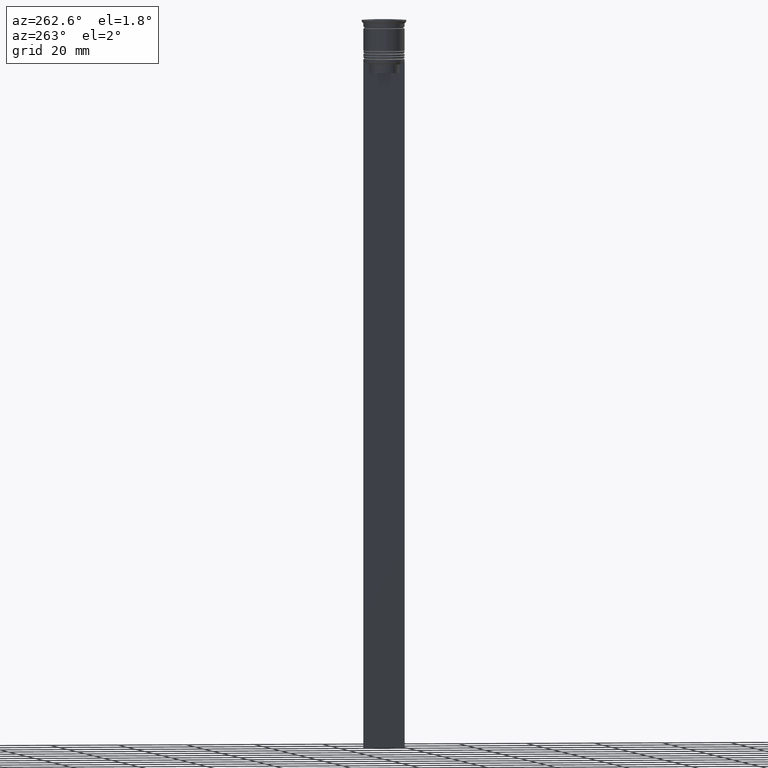
[diagram: clean part render]
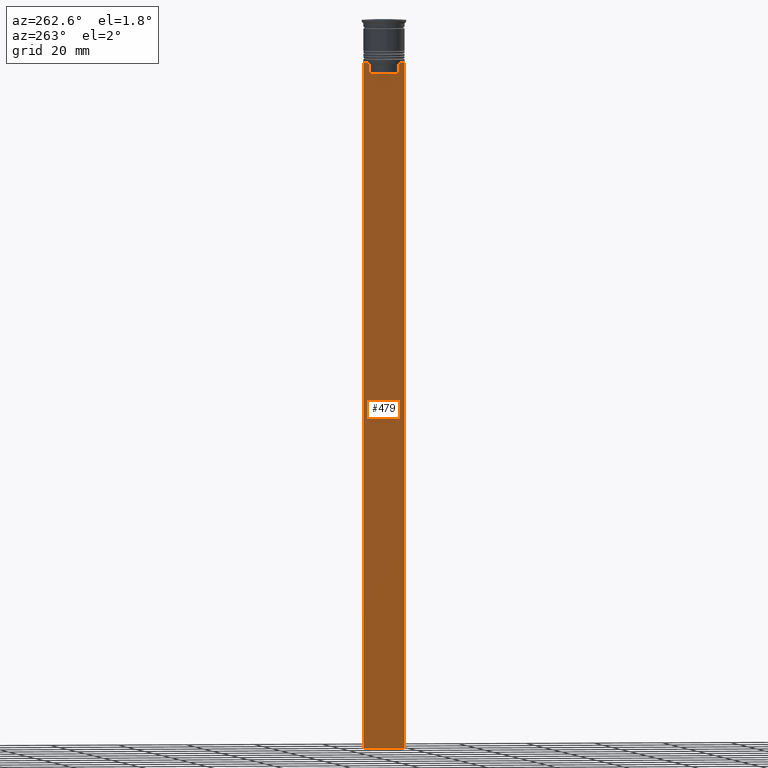
[diagram: same view with one face highlighted and labeled with its STEP entity id]
A machine part, auxiliary view. The second image highlights one B-rep face of the part: STEP entity #479.
In plain terms, the highlighted planar face has unit normal (-1, 0, 0).
Its self-contained STEP definition (entity closure, byte-faithful):
#39 = ORIENTED_EDGE ( 'NONE', *, *, #935, .F. ) ;
#107 = EDGE_CURVE ( 'NONE', #1149, #1156, #2042, .T. ) ;
#124 = CARTESIAN_POINT ( 'NONE',  ( -0.4999999999999997780, -4.874423042781576676, -12.50000000000000000 ) ) ;
#125 = CARTESIAN_POINT ( 'NONE',  ( -0.4999999999999997780, 4.539195634199897356, -12.83338923751318816 ) ) ;
#137 = VERTEX_POINT ( 'NONE', #2075 ) ;
#148 = EDGE_CURVE ( 'NONE', #1693, #709, #2022, .T. ) ;
#181 = VECTOR ( 'NONE', #2428, 1000.000000000000000 ) ;
#194 = LINE ( 'NONE', #549, #1060 ) ;
#205 = DIRECTION ( 'NONE',  ( 0.000000000000000000, 0.000000000000000000, -1.000000000000000000 ) ) ;
#208 = ORIENTED_EDGE ( 'NONE', *, *, #107, .F. ) ;
#226 = CARTESIAN_POINT ( 'NONE',  ( -0.4999999999999997780, 6.000000000000001776, -12.50000000000000000 ) ) ;
#259 = VECTOR ( 'NONE', #284, 1000.000000000000000 ) ;
#284 = DIRECTION ( 'NONE',  ( 0.000000000000000000, 0.000000000000000000, -1.000000000000000000 ) ) ;
#314 = CARTESIAN_POINT ( 'NONE',  ( -0.4999999999999997780, 4.371498598878878816, 0.000000000000000000 ) ) ;
#346 = DIRECTION ( 'NONE',  ( 0.000000000000000000, -1.000000000000000000, 0.000000000000000000 ) ) ;
#371 = VERTEX_POINT ( 'NONE', #1564 ) ;
#420 = VECTOR ( 'NONE', #2138, 1000.000000000000000 ) ;
#424 = CARTESIAN_POINT ( 'NONE',  ( -0.4999999999999997780, -4.371498598878878816, 0.000000000000000000 ) ) ;
#434 = DIRECTION ( 'NONE',  ( 0.000000000000000000, 0.000000000000000000, 1.000000000000000000 ) ) ;
#446 = ORIENTED_EDGE ( 'NONE', *, *, #1565, .F. ) ;
#464 = DIRECTION ( 'NONE',  ( -0.000000000000000000, -0.000000000000000000, 1.000000000000000000 ) ) ;
#479 = ADVANCED_FACE ( 'NONE', ( #1756 ), #2348, .T. ) ;
#487 = ORIENTED_EDGE ( 'NONE', *, *, #2206, .F. ) ;
#492 = CARTESIAN_POINT ( 'NONE',  ( -0.4999999999999997780, 4.874423042781576676, -12.50000000000000000 ) ) ;
#496 = CARTESIAN_POINT ( 'NONE',  ( -0.4999999999999997780, 4.371498598878878816, -13.00000000000000178 ) ) ;
#509 = VERTEX_POINT ( 'NONE', #684 ) ;
#549 = CARTESIAN_POINT ( 'NONE',  ( -0.4999999999999997780, 6.000000000000000888, -0.4584054212077061097 ) ) ;
#568 = B_SPLINE_CURVE_WITH_KNOTS ( 'NONE', 3,
 ( #2226, #1881, #125, #496 ),
 .UNSPECIFIED., .F., .F.,
 ( 4, 4 ),
 ( 0.008336552452178418518, 0.009045730124312837891 ),
 .UNSPECIFIED. ) ;
#576 = LINE ( 'NONE', #1176, #697 ) ;
#586 = VERTEX_POINT ( 'NONE', #492 ) ;
#619 = CARTESIAN_POINT ( 'NONE',  ( -0.4999999999999997780, -6.000000000000000000, -0.4584054212077061097 ) ) ;
#652 = CARTESIAN_POINT ( 'NONE',  ( -0.4999999999999997780, -4.874423042781576676, -12.50000000000000000 ) ) ;
#684 = CARTESIAN_POINT ( 'NONE',  ( -0.4999999999999997780, 6.000000000000000888, -212.5000000000000284 ) ) ;
#697 = VECTOR ( 'NONE', #2292, 1000.000000000000000 ) ;
#709 = VERTEX_POINT ( 'NONE', #1551 ) ;
#713 = CARTESIAN_POINT ( 'NONE',  ( -0.4999999999999997780, -4.706831372970964544, -12.66671687695981596 ) ) ;
#727 = LINE ( 'NONE', #1672, #1914 ) ;
#790 = VECTOR ( 'NONE', #2229, 1000.000000000000000 ) ;
#818 = CARTESIAN_POINT ( 'NONE',  ( -0.4999999999999997780, -4.371498598878878816, -13.00000000000000178 ) ) ;
#832 = EDGE_LOOP ( 'NONE', ( #1566, #446, #487, #1554, #39, #2184, #2490, #1108, #208, #1390, #933, #1185 ) ) ;
#854 = LINE ( 'NONE', #1620, #2232 ) ;
#903 = CARTESIAN_POINT ( 'NONE',  ( -0.4999999999999997780, -6.000000000000000000, -12.50000000000000000 ) ) ;
#915 = DIRECTION ( 'NONE',  ( 0.000000000000000000, -1.000000000000000000, 0.000000000000000000 ) ) ;
#933 = ORIENTED_EDGE ( 'NONE', *, *, #1445, .F. ) ;
#935 = EDGE_CURVE ( 'NONE', #2365, #509, #576, .T. ) ;
#999 = DIRECTION ( 'NONE',  ( 0.000000000000000000, -1.000000000000000000, 0.000000000000000000 ) ) ;
#1026 = VERTEX_POINT ( 'NONE', #226 ) ;
#1041 = CARTESIAN_POINT ( 'NONE',  ( -0.4999999999999997780, 4.371498598878878816, -15.50000000000000000 ) ) ;
#1060 = VECTOR ( 'NONE', #205, 1000.000000000000000 ) ;
#1061 = VECTOR ( 'NONE', #346, 1000.000000000000000 ) ;
#1070 = LINE ( 'NONE', #903, #790 ) ;
#1108 = ORIENTED_EDGE ( 'NONE', *, *, #2237, .F. ) ;
#1109 = CARTESIAN_POINT ( 'NONE',  ( -0.4999999999999997780, -4.371498598878878816, -13.00000000000000178 ) ) ;
#1149 = VERTEX_POINT ( 'NONE', #818 ) ;
#1156 = VERTEX_POINT ( 'NONE', #652 ) ;
#1176 = CARTESIAN_POINT ( 'NONE',  ( -0.4999999999999997780, -6.000000000000000000, -212.5000000000000284 ) ) ;
#1185 = ORIENTED_EDGE ( 'NONE', *, *, #2328, .F. ) ;
#1303 = CARTESIAN_POINT ( 'NONE',  ( -0.4999999999999997780, -6.000000000000000000, -0.4584054212077061097 ) ) ;
#1348 = EDGE_CURVE ( 'NONE', #1026, #509, #194, .T. ) ;
#1360 = CARTESIAN_POINT ( 'NONE',  ( -0.4999999999999997780, 4.399999999999999467, -15.50000000000000000 ) ) ;
#1390 = ORIENTED_EDGE ( 'NONE', *, *, #1520, .F. ) ;
#1443 = CARTESIAN_POINT ( 'NONE',  ( -0.4999999999999997780, -5.878775382679627626, -12.50000000000000000 ) ) ;
#1445 = EDGE_CURVE ( 'NONE', #1559, #371, #2330, .T. ) ;
#1520 = EDGE_CURVE ( 'NONE', #371, #1149, #2169, .T. ) ;
#1551 = CARTESIAN_POINT ( 'NONE',  ( -0.4999999999999997780, -6.000000000000000000, -12.50000000000000000 ) ) ;
#1554 = ORIENTED_EDGE ( 'NONE', *, *, #1348, .T. ) ;
#1559 = VERTEX_POINT ( 'NONE', #1041 ) ;
#1564 = CARTESIAN_POINT ( 'NONE',  ( -0.4999999999999997780, -4.371498598878878816, -15.50000000000000000 ) ) ;
#1565 = EDGE_CURVE ( 'NONE', #137, #586, #854, .T. ) ;
#1566 = ORIENTED_EDGE ( 'NONE', *, *, #1731, .F. ) ;
#1617 = LINE ( 'NONE', #1303, #259 ) ;
#1620 = CARTESIAN_POINT ( 'NONE',  ( -0.4999999999999997780, -6.000000000000000000, -12.50000000000000000 ) ) ;
#1630 = VECTOR ( 'NONE', #464, 1000.000000000000000 ) ;
#1672 = CARTESIAN_POINT ( 'NONE',  ( -0.4999999999999997780, -6.000000000000000000, -12.50000000000000000 ) ) ;
#1678 = CARTESIAN_POINT ( 'NONE',  ( -0.4999999999999997780, -4.539195586926424220, -12.83338928448044136 ) ) ;
#1693 = VERTEX_POINT ( 'NONE', #1443 ) ;
#1731 = EDGE_CURVE ( 'NONE', #586, #2131, #568, .T. ) ;
#1756 = FACE_OUTER_BOUND ( 'NONE', #832, .T. ) ;
#1784 = EDGE_CURVE ( 'NONE', #709, #2365, #1617, .T. ) ;
#1881 = CARTESIAN_POINT ( 'NONE',  ( -0.4999999999999997780, 4.706831415367290106, -12.66671683478478982 ) ) ;
#1914 = VECTOR ( 'NONE', #915, 1000.000000000000000 ) ;
#1936 = CARTESIAN_POINT ( 'NONE',  ( -0.4999999999999997780, -6.000000000000000000, -212.5000000000000284 ) ) ;
#2022 = LINE ( 'NONE', #2424, #1061 ) ;
#2041 = LINE ( 'NONE', #314, #181 ) ;
#2042 = B_SPLINE_CURVE_WITH_KNOTS ( 'NONE', 3,
 ( #1109, #1678, #713, #124 ),
 .UNSPECIFIED., .F., .F.,
 ( 4, 4 ),
 ( 0.02089901220910806920, 0.02161421017310284978 ),
 .UNSPECIFIED. ) ;
#2075 = CARTESIAN_POINT ( 'NONE',  ( -0.4999999999999997780, 5.878775382679627626, -12.50000000000000000 ) ) ;
#2131 = VERTEX_POINT ( 'NONE', #2372 ) ;
#2138 = DIRECTION ( 'NONE',  ( 0.000000000000000000, -1.000000000000000000, 0.000000000000000000 ) ) ;
#2167 = DIRECTION ( 'NONE',  ( -1.000000000000000000, 0.000000000000000000, 0.000000000000000000 ) ) ;
#2169 = LINE ( 'NONE', #424, #1630 ) ;
#2184 = ORIENTED_EDGE ( 'NONE', *, *, #1784, .F. ) ;
#2206 = EDGE_CURVE ( 'NONE', #1026, #137, #727, .T. ) ;
#2226 = CARTESIAN_POINT ( 'NONE',  ( -0.4999999999999997780, 4.874423042781576676, -12.50000000000000000 ) ) ;
#2229 = DIRECTION ( 'NONE',  ( 0.000000000000000000, -1.000000000000000000, 0.000000000000000000 ) ) ;
#2232 = VECTOR ( 'NONE', #999, 1000.000000000000000 ) ;
#2237 = EDGE_CURVE ( 'NONE', #1156, #1693, #1070, .T. ) ;
#2292 = DIRECTION ( 'NONE',  ( 0.000000000000000000, 1.000000000000000000, 0.000000000000000000 ) ) ;
#2328 = EDGE_CURVE ( 'NONE', #2131, #1559, #2041, .T. ) ;
#2330 = LINE ( 'NONE', #1360, #420 ) ;
#2348 = PLANE ( 'NONE',  #2471 ) ;
#2365 = VERTEX_POINT ( 'NONE', #1936 ) ;
#2372 = CARTESIAN_POINT ( 'NONE',  ( -0.4999999999999997780, 4.371498598878878816, -13.00000000000000178 ) ) ;
#2424 = CARTESIAN_POINT ( 'NONE',  ( -0.4999999999999997780, -6.000000000000000000, -12.50000000000000000 ) ) ;
#2428 = DIRECTION ( 'NONE',  ( 0.000000000000000000, 0.000000000000000000, -1.000000000000000000 ) ) ;
#2471 = AXIS2_PLACEMENT_3D ( 'NONE', #619, #2167, #434 ) ;
#2490 = ORIENTED_EDGE ( 'NONE', *, *, #148, .F. ) ;